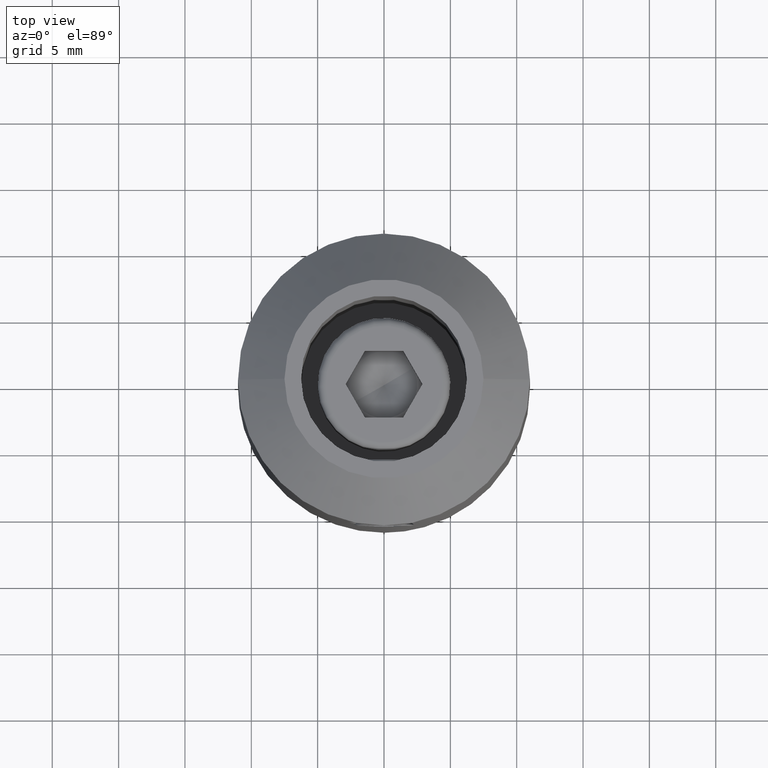
[diagram: clean part render]
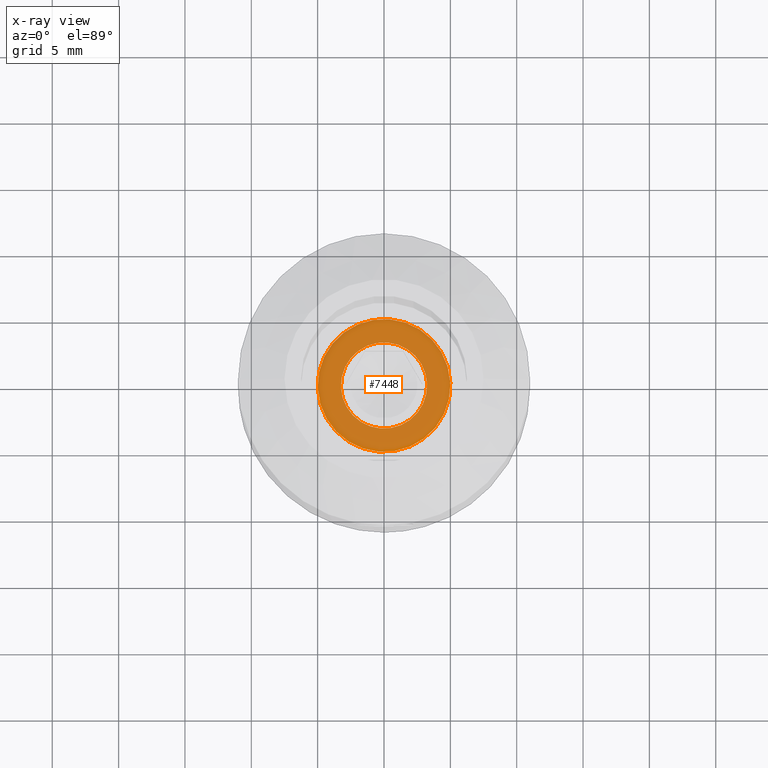
[diagram: x-ray — body ghosted, one internal face saturated and labeled with its STEP entity id]
A machine part, top view, then the same camera in x-ray: the body is ghosted and one INTERNAL B-rep face — a face not visible from any outside direction — is saturated and labeled: STEP entity #7448.
In plain terms, the highlighted planar face has unit normal (0, 0, -1).
Its self-contained STEP definition (entity closure, byte-faithful):
#1125 = ORIENTED_EDGE ( 'NONE', *, *, #17388, .F. ) ;
#1161 = DIRECTION ( 'NONE',  ( 0.000000000000000000, 2.109423746787771000E-15, -1.000000000000000000 ) ) ;
#1166 = AXIS2_PLACEMENT_3D ( 'NONE', #1499, #18178, #15010 ) ;
#1499 = CARTESIAN_POINT ( 'NONE',  ( 6.000000000000001776, 5.000000000000084377, 4.336808689942017736E-16 ) ) ;
#1713 = PLANE ( 'NONE',  #1166 ) ;
#2495 = DIRECTION ( 'NONE',  ( 0.000000000000000000, -2.109423746787771394E-15, 1.000000000000000000 ) ) ;
#3463 = CIRCLE ( 'NONE', #17444, 3.250000000000039968 ) ;
#4218 = CARTESIAN_POINT ( 'NONE',  ( 5.999999999999998224, 0.000000000000000000, 0.000000000000000000 ) ) ;
#4428 = CIRCLE ( 'NONE', #13760, 5.000000000000062172 ) ;
#4674 = FACE_BOUND ( 'NONE', #15227, .T. ) ;
#5721 = DIRECTION ( 'NONE',  ( -1.000000000000000000, 0.000000000000000000, 0.000000000000000000 ) ) ;
#6293 = EDGE_LOOP ( 'NONE', ( #10501, #1125 ) ) ;
#6507 = EDGE_CURVE ( 'NONE', #20970, #8294, #20457, .T. ) ;
#7117 = ORIENTED_EDGE ( 'NONE', *, *, #6507, .T. ) ;
#7193 = ORIENTED_EDGE ( 'NONE', *, *, #14731, .T. ) ;
#7290 = CARTESIAN_POINT ( 'NONE',  ( 6.000000000000001776, 0.000000000000000000, 0.000000000000000000 ) ) ;
#7448 = ADVANCED_FACE ( 'NONE', ( #4674, #11662 ), #1713, .T. ) ;
#7991 = VERTEX_POINT ( 'NONE', #8334 ) ;
#8294 = VERTEX_POINT ( 'NONE', #10802 ) ;
#8334 = CARTESIAN_POINT ( 'NONE',  ( 5.999999999999998224, 1.115944213351253350E-14, -5.000000000000000000 ) ) ;
#8502 = AXIS2_PLACEMENT_3D ( 'NONE', #4218, #5721, #10667 ) ;
#9013 = CARTESIAN_POINT ( 'NONE',  ( 6.000000000000001776, 6.855627177060340059E-15, -3.250000000000039968 ) ) ;
#10501 = ORIENTED_EDGE ( 'NONE', *, *, #17503, .F. ) ;
#10667 = DIRECTION ( 'NONE',  ( 0.000000000000000000, -2.109423746787771394E-15, 1.000000000000000000 ) ) ;
#10789 = VERTEX_POINT ( 'NONE', #14666 ) ;
#10802 = CARTESIAN_POINT ( 'NONE',  ( 6.000000000000001776, -6.457616967337446095E-15, 3.250000000000039968 ) ) ;
#11662 = FACE_OUTER_BOUND ( 'NONE', #6293, .T. ) ;
#12394 = DIRECTION ( 'NONE',  ( -1.000000000000000000, 0.000000000000000000, 0.000000000000000000 ) ) ;
#13760 = AXIS2_PLACEMENT_3D ( 'NONE', #20748, #12394, #2495 ) ;
#14666 = CARTESIAN_POINT ( 'NONE',  ( 5.999999999999998224, -1.054711873393898713E-14, 5.000000000000062172 ) ) ;
#14731 = EDGE_CURVE ( 'NONE', #8294, #20970, #3463, .T. ) ;
#15010 = DIRECTION ( 'NONE',  ( -0.000000000000000000, 2.109423746787771394E-15, -1.000000000000000000 ) ) ;
#15227 = EDGE_LOOP ( 'NONE', ( #7117, #7193 ) ) ;
#15995 = AXIS2_PLACEMENT_3D ( 'NONE', #7290, #18924, #20572 ) ;
#17388 = EDGE_CURVE ( 'NONE', #7991, #10789, #18652, .T. ) ;
#17444 = AXIS2_PLACEMENT_3D ( 'NONE', #20868, #21005, #1161 ) ;
#17503 = EDGE_CURVE ( 'NONE', #10789, #7991, #4428, .T. ) ;
#18178 = DIRECTION ( 'NONE',  ( 1.000000000000000000, 0.000000000000000000, 0.000000000000000000 ) ) ;
#18652 = CIRCLE ( 'NONE', #8502, 5.000000000000062172 ) ;
#18924 = DIRECTION ( 'NONE',  ( -1.000000000000000000, -0.000000000000000000, -0.000000000000000000 ) ) ;
#20457 = CIRCLE ( 'NONE', #15995, 3.250000000000039968 ) ;
#20572 = DIRECTION ( 'NONE',  ( 0.000000000000000000, 2.109423746787771000E-15, -1.000000000000000000 ) ) ;
#20748 = CARTESIAN_POINT ( 'NONE',  ( 5.999999999999998224, 0.000000000000000000, 0.000000000000000000 ) ) ;
#20868 = CARTESIAN_POINT ( 'NONE',  ( 6.000000000000001776, 0.000000000000000000, 0.000000000000000000 ) ) ;
#20970 = VERTEX_POINT ( 'NONE', #9013 ) ;
#21005 = DIRECTION ( 'NONE',  ( -1.000000000000000000, -0.000000000000000000, -0.000000000000000000 ) ) ;